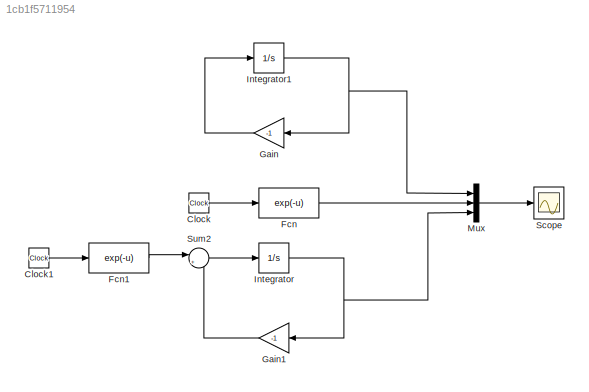
MODEL slx_1cb1f5711954
KIND model
CONFIG AbsTol = auto
CONFIG EnableMultiTasking = off
CONFIG FixedStep = auto
CONFIG MaxStep = auto
CONFIG MinStep = auto
CONFIG RelTol = 1e-3
CONFIG SampleTimeConstraint = Unconstrained
CONFIG SolverName = VariableStepAuto
CONFIG StartTime = 0.0
CONFIG StopTime = 10
BLOCK [Clock] Clock
BLOCK [Clock] Clock1
BLOCK [Fcn] Fcn
  Expr = exp(-u)
BLOCK [Fcn] Fcn1
  Expr = exp(-u)
BLOCK [Gain] Gain
  Gain = -1
BLOCK [Gain] Gain1
  Gain = -1
BLOCK [Integrator] Integrator
  InitialCondition = 1
BLOCK [Integrator] Integrator1
  InitialCondition = 1
BLOCK [Mux] Mux
  DisplayOption = bar
  Inputs = 3
BLOCK [Scope] Scope
  Floating = off
  NumInputPorts = 1
  ScopeSpecificationString = Simulink.scopes.TimeScopeBlockCfg('CurrentConfiguration', extmgr.ConfigurationSet(extmgr.Configuration('Core','General UI',true),extmgr.Configuration('Core','Source UI',true),extmgr.Configuration('Sources','WiredSimulink',true),extmgr.Configuration('Visuals','Time Domain',true,'SerializedDisplays',{struct('MinYLimReal','-0.12495','MaxYLimReal','1.12499','YLabelReal','','MinYLimMag','0.00000','MaxY...<+1599ch>
BLOCK [Sum] Sum2
  Inputs = |++
LINE Clock1:1 -> Fcn1:1
LINE Clock:1 -> Fcn:1
LINE Fcn1:1 -> Sum2:1
LINE Fcn:1 -> Mux:2
LINE Gain1:1 -> Sum2:2
LINE Gain:1 -> Integrator1:1
NET Integrator1:1 -> Gain:1, Mux:1
NET Integrator:1 -> Gain1:1, Mux:3
LINE Mux:1 -> Scope:1
LINE Sum2:1 -> Integrator:1
note: NET lines group one-source signal fan-out (src -> all destinations, sorted); 1:1 wires keep LINE
